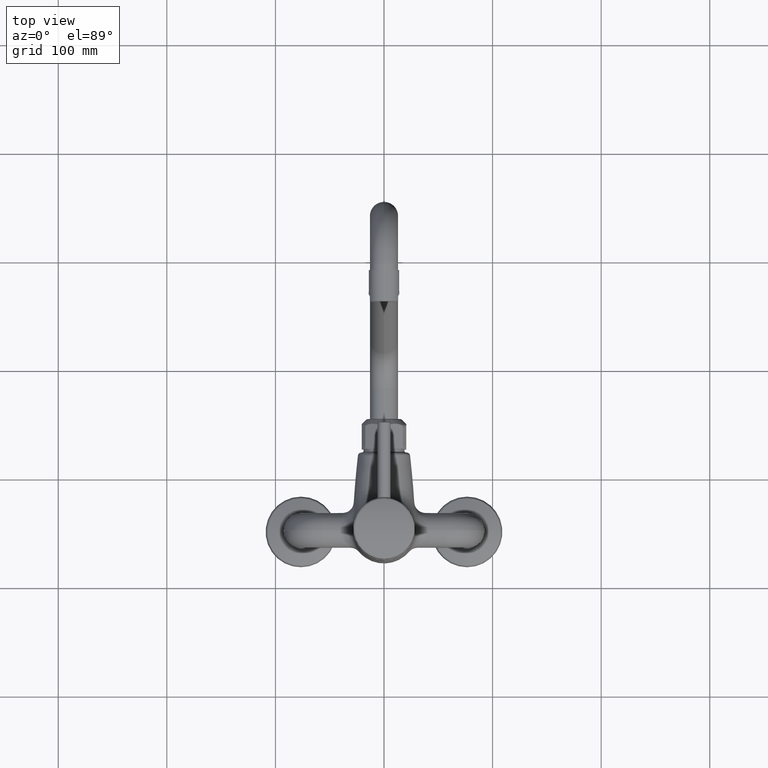
[diagram: clean part render]
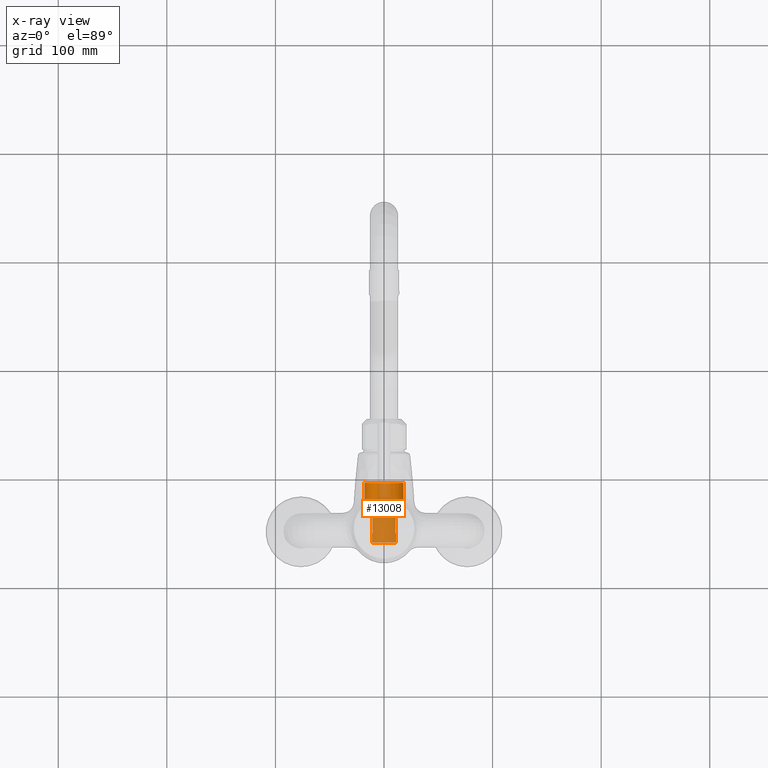
[diagram: x-ray — body ghosted, one internal face saturated and labeled with its STEP entity id]
A machine part, top view, then the same camera in x-ray: the body is ghosted and one INTERNAL B-rep face — a face not visible from any outside direction — is saturated and labeled: STEP entity #13008.
In plain terms, the highlighted cylindrical surface (edge-blend (fillet) strip) has radius 17.818 mm, axis along (0, 1, 0).
Its self-contained STEP definition (entity closure, byte-faithful):
#11378=DIRECTION('',(0.E0,1.E0,0.E0));
#11379=VECTOR('',#11378,8.248818621411E0);
#11380=CARTESIAN_POINT('',(1.116637176428E1,4.1E1,-1.3885E1));
#11381=LINE('',#11380,#11379);
#11382=DIRECTION('',(0.E0,1.E0,0.E0));
#11383=VECTOR('',#11382,8.248818621411E0);
#11384=CARTESIAN_POINT('',(-1.116637176428E1,4.1E1,-1.3885E1));
#11385=LINE('',#11384,#11383);
#11386=CARTESIAN_POINT('',(0.E0,4.1E1,0.E0));
#11387=DIRECTION('',(0.E0,1.E0,0.E0));
#11388=DIRECTION('',(6.266905645218E-1,0.E0,-7.792682056515E-1));
#11389=AXIS2_PLACEMENT_3D('',#11386,#11387,#11388);
#11391=DIRECTION('',(0.E0,-1.E0,0.E0));
#11392=VECTOR('',#11391,2.332869777435E1);
#11393=CARTESIAN_POINT('',(1.781799886009E1,9.579527849502E1,0.E0));
#11394=LINE('',#11393,#11392);
#11395=CARTESIAN_POINT('',(-1.076101087843E-14,9.579527849502E1,0.E0));
#11396=DIRECTION('',(0.E0,1.E0,0.E0));
#11397=DIRECTION('',(1.E0,0.E0,0.E0));
#11398=AXIS2_PLACEMENT_3D('',#11395,#11396,#11397);
#11423=DIRECTION('',(0.E0,-1.E0,0.E0));
#11424=VECTOR('',#11423,2.332869777435E1);
#11425=CARTESIAN_POINT('',(-1.781799886009E1,9.579527849502E1,0.E0));
#11426=LINE('',#11425,#11424);
#11427=CARTESIAN_POINT('',(0.E0,7.246658072067E1,0.E0));
#11428=DIRECTION('',(0.E0,1.E0,0.E0));
#11429=DIRECTION('',(-9.907186041651E-1,0.E0,-1.359288319712E-1));
#11430=AXIS2_PLACEMENT_3D('',#11427,#11428,#11429);
#11458=CARTESIAN_POINT('',(-1.116637176428E1,7.661317056729E1,-1.3885E1));
#11459=CARTESIAN_POINT('',(-1.157817447217E1,7.642634611420E1,
-1.355382663811E1));
#11460=CARTESIAN_POINT('',(-1.237235527393E1,7.604127294242E1,
-1.285536732900E1));
#11461=CARTESIAN_POINT('',(-1.348479474826E1,7.543408386397E1,
-1.168398363600E1));
#11462=CARTESIAN_POINT('',(-1.448461341320E1,7.482765243900E1,
-1.041799409300E1));
#11463=CARTESIAN_POINT('',(-1.535315665534E1,7.425060695846E1,
-9.087410553648E0));
#11464=CARTESIAN_POINT('',(-1.607863240149E1,7.373000262887E1,
-7.727848746075E0));
#11465=CARTESIAN_POINT('',(-1.666202173715E1,7.328414178006E1,
-6.368277166707E0));
#11466=CARTESIAN_POINT('',(-1.711262206208E1,7.292217295330E1,
-5.027630162247E0));
#11467=CARTESIAN_POINT('',(-1.744418355295E1,7.264556261344E1,
-3.711326597291E0));
#11468=CARTESIAN_POINT('',(-1.759404153826E1,7.251710776077E1,
-2.848951028729E0));
#11469=CARTESIAN_POINT('',(-1.765262295968E1,7.246658072067E1,
-2.421979773116E0));
#11471=DIRECTION('',(0.E0,1.E0,0.E0));
#11472=VECTOR('',#11471,4.931457134449E0);
#11473=CARTESIAN_POINT('',(-1.116637176428E1,7.168171343284E1,-1.3885E1));
#11474=LINE('',#11473,#11472);
#11480=CARTESIAN_POINT('',(-1.099730377588E1,7.103053725177E1,
-1.401928646683E1));
#11481=CARTESIAN_POINT('',(-1.099874543633E1,7.108559204336E1,
-1.401815556919E1));
#11482=CARTESIAN_POINT('',(-1.100763919760E1,7.119574324239E1,
-1.401118157775E1));
#11483=CARTESIAN_POINT('',(-1.104024992449E1,7.136270868263E1,
-1.398552501826E1));
#11484=CARTESIAN_POINT('',(-1.109244856288E1,7.152639775640E1,
-1.394419918406E1));
#11485=CARTESIAN_POINT('',(-1.113958395004E1,7.163067331412E1,
-1.390654286587E1));
#11486=CARTESIAN_POINT('',(-1.116637176428E1,7.168171343284E1,-1.3885E1));
#11514=CARTESIAN_POINT('',(-1.046127597839E1,5.056046142800E1,
-1.442368844235E1));
#11515=CARTESIAN_POINT('',(-1.063995460501E1,5.738392288812E1,
-1.429409562481E1));
#11516=CARTESIAN_POINT('',(-1.081863061547E1,6.420728444082E1,
-1.415944502815E1));
#11517=CARTESIAN_POINT('',(-1.099730377690E1,7.103053719347E1,
-1.401928646603E1));
#11549=CARTESIAN_POINT('',(-1.116637176428E1,4.924881862141E1,-1.3885E1));
#11550=CARTESIAN_POINT('',(-1.109602823013E1,4.929273657765E1,
-1.394157054761E1));
#11551=CARTESIAN_POINT('',(-1.096529658229E1,4.939068411078E1,
-1.404494602754E1));
#11552=CARTESIAN_POINT('',(-1.080258630596E1,4.955876381099E1,
-1.417026679509E1));
#11553=CARTESIAN_POINT('',(-1.067128699522E1,4.974416167977E1,
-1.426925034627E1));
#11554=CARTESIAN_POINT('',(-1.057245467805E1,4.993961705266E1,
-1.434251620670E1));
#11555=CARTESIAN_POINT('',(-1.050389614121E1,5.014357807292E1,
-1.439272851973E1));
#11556=CARTESIAN_POINT('',(-1.046555956625E1,5.035073710043E1,
-1.442058780010E1));
#11557=CARTESIAN_POINT('',(-1.045945251254E1,5.049082607689E1,
-1.442501097365E1));
#11558=CARTESIAN_POINT('',(-1.046127597839E1,5.056046142800E1,
-1.442368844235E1));
#11727=CARTESIAN_POINT('',(1.099730376907E1,7.103053689470E1,
-1.401928647217E1));
#11728=CARTESIAN_POINT('',(1.081863061025E1,6.420728424164E1,
-1.415944503208E1));
#11729=CARTESIAN_POINT('',(1.063995460240E1,5.738392278853E1,
-1.429409562671E1));
#11730=CARTESIAN_POINT('',(1.046127597839E1,5.056046142800E1,
-1.442368844235E1));
#11762=CARTESIAN_POINT('',(1.116637176428E1,7.168171319252E1,-1.3885E1));
#11763=CARTESIAN_POINT('',(1.113958394846E1,7.163067306886E1,
-1.390654286713E1));
#11764=CARTESIAN_POINT('',(1.109244855562E1,7.152639750630E1,
-1.394419918989E1));
#11765=CARTESIAN_POINT('',(1.104024989033E1,7.136270831487E1,
-1.398552504523E1));
#11766=CARTESIAN_POINT('',(1.100763919236E1,7.119574298677E1,
-1.401118158184E1));
#11767=CARTESIAN_POINT('',(1.099874542796E1,7.108559177215E1,
-1.401815557576E1));
#11768=CARTESIAN_POINT('',(1.099730376755E1,7.103053698202E1,
-1.401928647337E1));
#11796=DIRECTION('',(0.E0,1.E0,0.E0));
#11797=VECTOR('',#11796,4.931457374771E0);
#11798=CARTESIAN_POINT('',(1.116637176428E1,7.168171319252E1,-1.3885E1));
#11799=LINE('',#11798,#11797);
#11805=CARTESIAN_POINT('',(1.765262295968E1,7.246658072067E1,
-2.421979773116E0));
#11806=CARTESIAN_POINT('',(1.759403943816E1,7.251710957212E1,
-2.848966335294E0));
#11807=CARTESIAN_POINT('',(1.744417702540E1,7.264556834667E1,
-3.711368689058E0));
#11808=CARTESIAN_POINT('',(1.711258253515E1,7.292220543921E1,
-5.027767228242E0));
#11809=CARTESIAN_POINT('',(1.666198740797E1,7.328416854045E1,
-6.368362690573E0));
#11810=CARTESIAN_POINT('',(1.607860238172E1,7.373002472032E1,
-7.727909833247E0));
#11811=CARTESIAN_POINT('',(1.535313641286E1,7.425062079675E1,
-9.087443524201E0));
#11812=CARTESIAN_POINT('',(1.448459470797E1,7.482766430843E1,
-1.041802001833E1));
#11813=CARTESIAN_POINT('',(1.348477684245E1,7.543409410554E1,
-1.168400395506E1));
#11814=CARTESIAN_POINT('',(1.237234262580E1,7.604127928025E1,
-1.285537897022E1));
#11815=CARTESIAN_POINT('',(1.157816946326E1,7.642634838662E1,
-1.355383066629E1));
#11816=CARTESIAN_POINT('',(1.116637176428E1,7.661317056729E1,-1.3885E1));
#11818=CARTESIAN_POINT('',(0.E0,7.246658072067E1,0.E0));
#11819=DIRECTION('',(0.E0,1.E0,0.E0));
#11820=DIRECTION('',(1.E0,0.E0,0.E0));
#11821=AXIS2_PLACEMENT_3D('',#11818,#11819,#11820);
#12322=CARTESIAN_POINT('',(1.046127597839E1,5.056046142800E1,
-1.442368844235E1));
#12323=CARTESIAN_POINT('',(1.045945250848E1,5.049082592160E1,
-1.442501097660E1));
#12324=CARTESIAN_POINT('',(1.046555958106E1,5.035073670888E1,
-1.442058778949E1));
#12325=CARTESIAN_POINT('',(1.050389638698E1,5.014357712011E1,
-1.439272834072E1));
#12326=CARTESIAN_POINT('',(1.057245486089E1,4.993961670946E1,
-1.434251607102E1));
#12327=CARTESIAN_POINT('',(1.067128707293E1,4.974416149032E1,
-1.426925028986E1));
#12328=CARTESIAN_POINT('',(1.080258695410E1,4.955876302103E1,
-1.417026630182E1));
#12329=CARTESIAN_POINT('',(1.096529686270E1,4.939068391471E1,
-1.404494580581E1));
#12330=CARTESIAN_POINT('',(1.109602834780E1,4.929273650418E1,
-1.394157045297E1));
#12331=CARTESIAN_POINT('',(1.116637176428E1,4.924881862141E1,-1.3885E1));
#12506=CARTESIAN_POINT('',(1.781799886009E1,9.579527849502E1,0.E0));
#12507=CARTESIAN_POINT('',(-1.781799886009E1,9.579527849502E1,0.E0));
#12508=VERTEX_POINT('',#12506);
#12509=VERTEX_POINT('',#12507);
#12510=VERTEX_POINT('',#11514);
#12511=VERTEX_POINT('',#11517);
#12512=VERTEX_POINT('',#11727);
#12513=VERTEX_POINT('',#11730);
#12514=CARTESIAN_POINT('',(1.781799886009E1,7.246658072067E1,0.E0));
#12515=CARTESIAN_POINT('',(1.765262295968E1,7.246658072067E1,
-2.421979773116E0));
#12516=VERTEX_POINT('',#12514);
#12517=VERTEX_POINT('',#12515);
#12518=CARTESIAN_POINT('',(-1.765262295968E1,7.246658072067E1,
-2.421979773116E0));
#12519=CARTESIAN_POINT('',(-1.781799886009E1,7.246658072067E1,0.E0));
#12520=VERTEX_POINT('',#12518);
#12521=VERTEX_POINT('',#12519);
#12526=VERTEX_POINT('',#11486);
#12527=VERTEX_POINT('',#11762);
#12528=VERTEX_POINT('',#12331);
#12529=VERTEX_POINT('',#11549);
#12530=CARTESIAN_POINT('',(-1.116637176428E1,4.1E1,-1.3885E1));
#12531=CARTESIAN_POINT('',(1.116637176428E1,4.1E1,-1.3885E1));
#12532=VERTEX_POINT('',#12530);
#12533=VERTEX_POINT('',#12531);
#12534=CARTESIAN_POINT('',(1.116637176428E1,7.661317056729E1,-1.3885E1));
#12535=VERTEX_POINT('',#12534);
#12536=CARTESIAN_POINT('',(-1.116637176428E1,7.661317056729E1,-1.3885E1));
#12537=VERTEX_POINT('',#12536);
#12968=CARTESIAN_POINT('',(0.E0,1.39E2,0.E0));
#12969=DIRECTION('',(0.E0,1.E0,0.E0));
#12970=DIRECTION('',(1.E0,0.E0,0.E0));
#12971=AXIS2_PLACEMENT_3D('',#12968,#12969,#12970);
#12972=CYLINDRICAL_SURFACE('',#12971,1.781799886009E1);
#12974=ORIENTED_EDGE('',*,*,#12973,.F.);
#12976=ORIENTED_EDGE('',*,*,#12975,.T.);
#12978=ORIENTED_EDGE('',*,*,#12977,.T.);
#12980=ORIENTED_EDGE('',*,*,#12979,.T.);
#12982=ORIENTED_EDGE('',*,*,#12981,.F.);
#12984=ORIENTED_EDGE('',*,*,#12983,.T.);
#12986=ORIENTED_EDGE('',*,*,#12985,.T.);
#12988=ORIENTED_EDGE('',*,*,#12987,.T.);
#12989=ORIENTED_EDGE('',*,*,#12922,.F.);
#12990=ORIENTED_EDGE('',*,*,#12956,.T.);
#12991=ORIENTED_EDGE('',*,*,#12945,.T.);
#12993=ORIENTED_EDGE('',*,*,#12992,.T.);
#12995=ORIENTED_EDGE('',*,*,#12994,.T.);
#12997=ORIENTED_EDGE('',*,*,#12996,.T.);
#12999=ORIENTED_EDGE('',*,*,#12998,.T.);
#13001=ORIENTED_EDGE('',*,*,#13000,.T.);
#13003=ORIENTED_EDGE('',*,*,#13002,.T.);
#13005=ORIENTED_EDGE('',*,*,#13004,.F.);
#13006=EDGE_LOOP('',(#12974,#12976,#12978,#12980,#12982,#12984,#12986,#12988,
#12989,#12990,#12991,#12993,#12995,#12997,#12999,#13001,#13003,#13005));
#13007=FACE_OUTER_BOUND('',#13006,.F.);
#11390=CIRCLE('',#11389,1.781799886009E1);
#11399=CIRCLE('',#11398,1.781799886009E1);
#11431=CIRCLE('',#11430,1.781799886009E1);
#11470=B_SPLINE_CURVE_WITH_KNOTS('',3,(#11458,#11459,#11460,#11461,#11462,
#11463,#11464,#11465,#11466,#11467,#11468,#11469),.UNSPECIFIED.,.F.,.F.,(4,1,1,
1,1,1,1,1,1,4),(0.E0,1.111111111111E-1,2.222222222222E-1,3.333333333333E-1,
4.444444444444E-1,5.555555555556E-1,6.666666666667E-1,7.777777777778E-1,
8.888888888889E-1,1.E0),.UNSPECIFIED.);
#11487=B_SPLINE_CURVE_WITH_KNOTS('',3,(#11480,#11481,#11482,#11483,#11484,
#11485,#11486),.UNSPECIFIED.,.F.,.F.,(4,1,1,1,4),(0.E0,2.5E-1,5.E-1,7.5E-1,
1.E0),.UNSPECIFIED.);
#11518=B_SPLINE_CURVE_WITH_KNOTS('',3,(#11514,#11515,#11516,#11517),
.UNSPECIFIED.,.F.,.F.,(4,4),(0.E0,1.E0),.UNSPECIFIED.);
#11559=B_SPLINE_CURVE_WITH_KNOTS('',3,(#11549,#11550,#11551,#11552,#11553,
#11554,#11555,#11556,#11557,#11558),.UNSPECIFIED.,.F.,.F.,(4,1,1,1,1,1,1,4),(
0.E0,1.428571428571E-1,2.857142857143E-1,4.285714285714E-1,5.714285714286E-1,
7.142857142857E-1,8.571428571429E-1,1.E0),.UNSPECIFIED.);
#11731=B_SPLINE_CURVE_WITH_KNOTS('',3,(#11727,#11728,#11729,#11730),
.UNSPECIFIED.,.F.,.F.,(4,4),(0.E0,1.E0),.UNSPECIFIED.);
#11769=B_SPLINE_CURVE_WITH_KNOTS('',3,(#11762,#11763,#11764,#11765,#11766,
#11767,#11768),.UNSPECIFIED.,.F.,.F.,(4,1,1,1,4),(0.E0,2.5E-1,5.E-1,7.5E-1,
1.E0),.UNSPECIFIED.);
#11817=B_SPLINE_CURVE_WITH_KNOTS('',3,(#11805,#11806,#11807,#11808,#11809,
#11810,#11811,#11812,#11813,#11814,#11815,#11816),.UNSPECIFIED.,.F.,.F.,(4,1,1,
1,1,1,1,1,1,4),(0.E0,1.111111111111E-1,2.222222222222E-1,3.333333333333E-1,
4.444444444444E-1,5.555555555556E-1,6.666666666667E-1,7.777777777778E-1,
8.888888888889E-1,1.E0),.UNSPECIFIED.);
#11822=CIRCLE('',#11821,1.781799886009E1);
#12332=B_SPLINE_CURVE_WITH_KNOTS('',3,(#12322,#12323,#12324,#12325,#12326,
#12327,#12328,#12329,#12330,#12331),.UNSPECIFIED.,.F.,.F.,(4,1,1,1,1,1,1,4),(
0.E0,1.428571428571E-1,2.857142857143E-1,4.285714285714E-1,5.714285714286E-1,
7.142857142857E-1,8.571428571429E-1,1.E0),.UNSPECIFIED.);
#12922=EDGE_CURVE('',#12533,#12528,#11381,.T.);
#12945=EDGE_CURVE('',#12532,#12529,#11385,.T.);
#12956=EDGE_CURVE('',#12533,#12532,#11390,.T.);
#12973=EDGE_CURVE('',#12508,#12509,#11399,.T.);
#12975=EDGE_CURVE('',#12508,#12516,#11394,.T.);
#12977=EDGE_CURVE('',#12516,#12517,#11822,.T.);
#12979=EDGE_CURVE('',#12517,#12535,#11817,.T.);
#12981=EDGE_CURVE('',#12527,#12535,#11799,.T.);
#12983=EDGE_CURVE('',#12527,#12512,#11769,.T.);
#12985=EDGE_CURVE('',#12512,#12513,#11731,.T.);
#12987=EDGE_CURVE('',#12513,#12528,#12332,.T.);
#12992=EDGE_CURVE('',#12529,#12510,#11559,.T.);
#12994=EDGE_CURVE('',#12510,#12511,#11518,.T.);
#12996=EDGE_CURVE('',#12511,#12526,#11487,.T.);
#12998=EDGE_CURVE('',#12526,#12537,#11474,.T.);
#13000=EDGE_CURVE('',#12537,#12520,#11470,.T.);
#13002=EDGE_CURVE('',#12520,#12521,#11431,.T.);
#13004=EDGE_CURVE('',#12509,#12521,#11426,.T.);
#13008=ADVANCED_FACE('',(#13007),#12972,.F.);